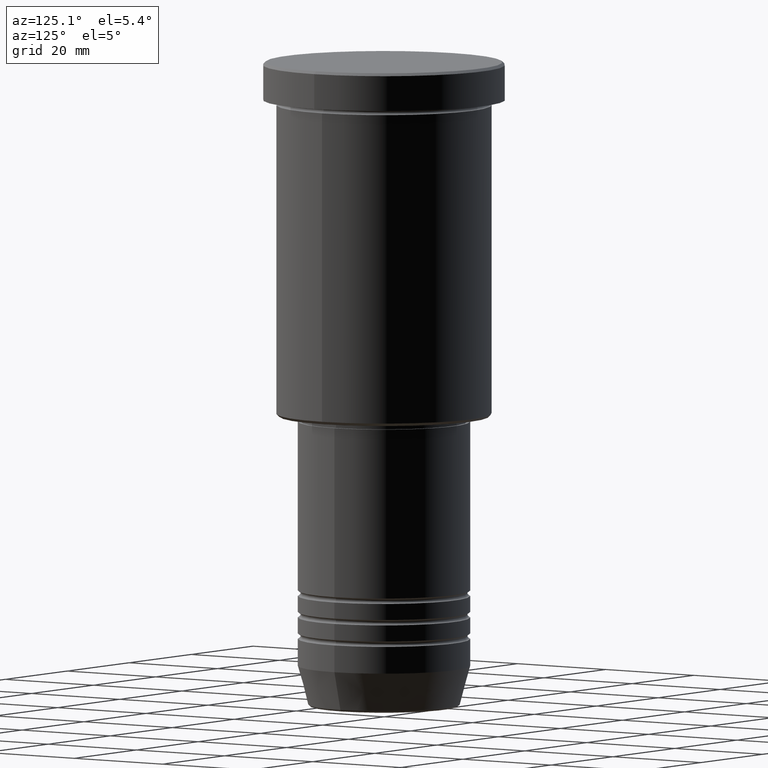
[diagram: clean part render]
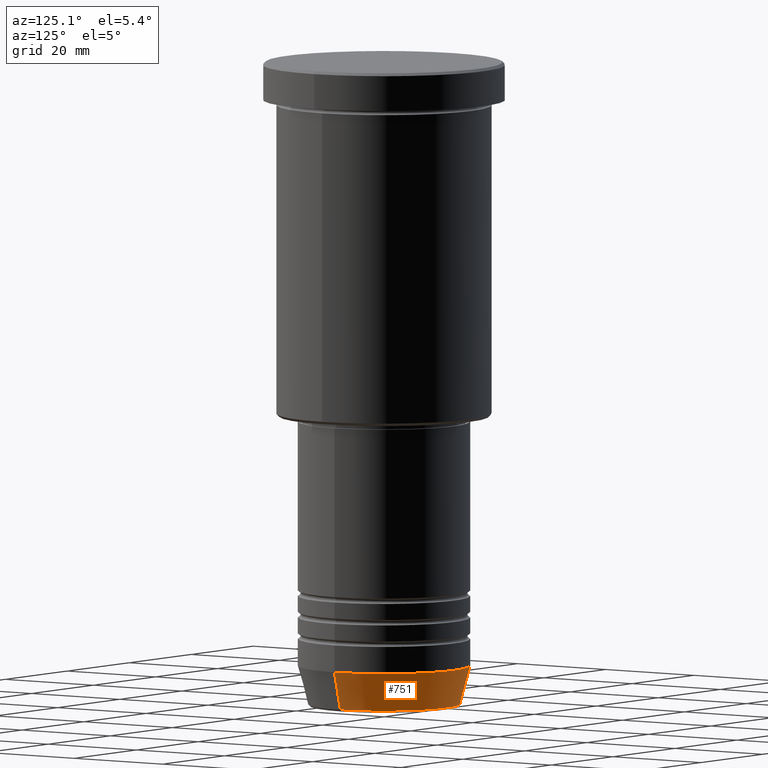
[diagram: same view with one face highlighted and labeled with its STEP entity id]
A machine part, auxiliary view. The second image highlights one B-rep face of the part: STEP entity #751.
In plain terms, the highlighted conical surface has half-angle 15 deg.
Its self-contained STEP definition (entity closure, byte-faithful):
#39 = EDGE_CURVE ( 'NONE', #1025, #771, #62, .T. ) ;
#48 = AXIS2_PLACEMENT_3D ( 'NONE', #787, #55, #570 ) ;
#55 = DIRECTION ( 'NONE',  ( -0.000000000000000000, -0.000000000000000000, 1.000000000000000000 ) ) ;
#62 = LINE ( 'NONE', #436, #892 ) ;
#65 = ORIENTED_EDGE ( 'NONE', *, *, #1163, .F. ) ;
#112 = CIRCLE ( 'NONE', #48, 14.08968047592162698 ) ;
#163 = VECTOR ( 'NONE', #914, 1000.000000000000000 ) ;
#164 = ORIENTED_EDGE ( 'NONE', *, *, #1107, .T. ) ;
#366 = DIRECTION ( 'NONE',  ( 1.000000000000000000, 0.000000000000000000, 0.000000000000000000 ) ) ;
#379 = CARTESIAN_POINT ( 'NONE',  ( 0.000000000000000000, 0.000000000000000000, -112.4999999999999858 ) ) ;
#420 = DIRECTION ( 'NONE',  ( -0.2588190451025213501, 3.169619151431772337E-17, 0.9659258262890680902 ) ) ;
#436 = CARTESIAN_POINT ( 'NONE',  ( -16.00000000000000000, 1.959434878635765131E-15, -112.4999999999999858 ) ) ;
#452 = AXIS2_PLACEMENT_3D ( 'NONE', #1055, #969, #477 ) ;
#473 = CARTESIAN_POINT ( 'NONE',  ( -14.08968047592162698, 1.842461544110201269E-15, -119.6294095225512564 ) ) ;
#475 = FACE_OUTER_BOUND ( 'NONE', #514, .T. ) ;
#477 = DIRECTION ( 'NONE',  ( 1.000000000000000000, 0.000000000000000000, 0.000000000000000000 ) ) ;
#478 = VERTEX_POINT ( 'NONE', #586 ) ;
#514 = EDGE_LOOP ( 'NONE', ( #164, #841, #65, #1161 ) ) ;
#565 = AXIS2_PLACEMENT_3D ( 'NONE', #379, #753, #366 ) ;
#570 = DIRECTION ( 'NONE',  ( 1.000000000000000000, 0.000000000000000000, 0.000000000000000000 ) ) ;
#586 = CARTESIAN_POINT ( 'NONE',  ( 16.00000000000000000, 0.000000000000000000, -112.4999999999999858 ) ) ;
#665 = CIRCLE ( 'NONE', #452, 16.00000000000000000 ) ;
#751 = ADVANCED_FACE ( 'NONE', ( #475 ), #1077, .T. ) ;
#753 = DIRECTION ( 'NONE',  ( -0.000000000000000000, -0.000000000000000000, 1.000000000000000000 ) ) ;
#771 = VERTEX_POINT ( 'NONE', #805 ) ;
#787 = CARTESIAN_POINT ( 'NONE',  ( 0.000000000000000000, 0.000000000000000000, -119.6294095225512564 ) ) ;
#805 = CARTESIAN_POINT ( 'NONE',  ( -16.00000000000000000, 1.959434878635765131E-15, -112.4999999999999858 ) ) ;
#818 = CARTESIAN_POINT ( 'NONE',  ( 14.08968047592162698, 0.000000000000000000, -119.6294095225512564 ) ) ;
#841 = ORIENTED_EDGE ( 'NONE', *, *, #39, .T. ) ;
#892 = VECTOR ( 'NONE', #420, 1000.000000000000000 ) ;
#914 = DIRECTION ( 'NONE',  ( 0.2588190451025213501, 0.000000000000000000, 0.9659258262890680902 ) ) ;
#922 = LINE ( 'NONE', #1101, #163 ) ;
#969 = DIRECTION ( 'NONE',  ( -0.000000000000000000, -0.000000000000000000, 1.000000000000000000 ) ) ;
#981 = EDGE_CURVE ( 'NONE', #986, #478, #922, .T. ) ;
#986 = VERTEX_POINT ( 'NONE', #818 ) ;
#1025 = VERTEX_POINT ( 'NONE', #473 ) ;
#1055 = CARTESIAN_POINT ( 'NONE',  ( 0.000000000000000000, 0.000000000000000000, -112.4999999999999858 ) ) ;
#1077 = CONICAL_SURFACE ( 'NONE', #565, 16.00000000000000000, 0.2617993877991500740 ) ;
#1101 = CARTESIAN_POINT ( 'NONE',  ( 16.00000000000000000, 0.000000000000000000, -112.4999999999999858 ) ) ;
#1107 = EDGE_CURVE ( 'NONE', #986, #1025, #112, .T. ) ;
#1161 = ORIENTED_EDGE ( 'NONE', *, *, #981, .F. ) ;
#1163 = EDGE_CURVE ( 'NONE', #478, #771, #665, .T. ) ;